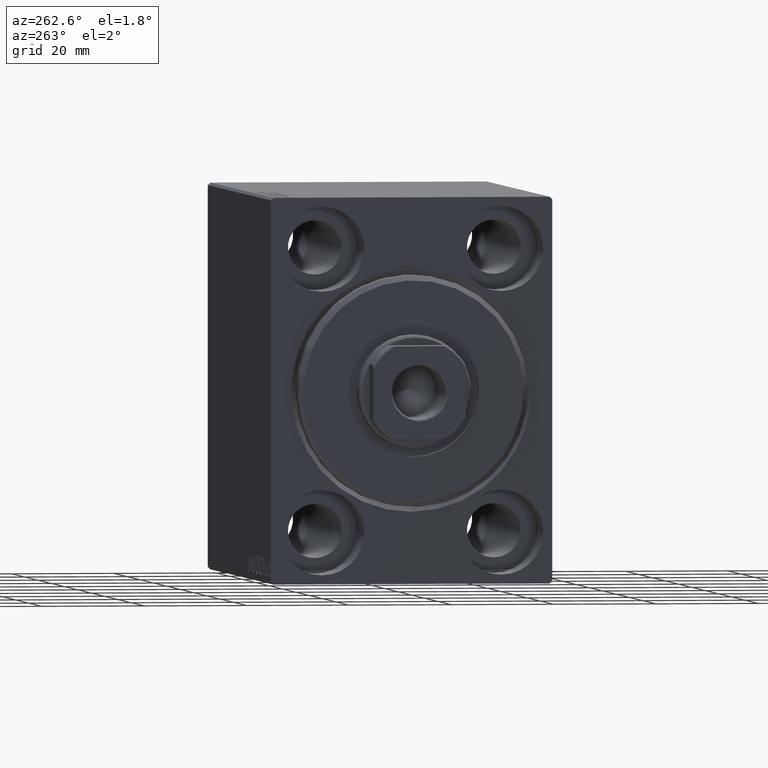
[diagram: clean part render]
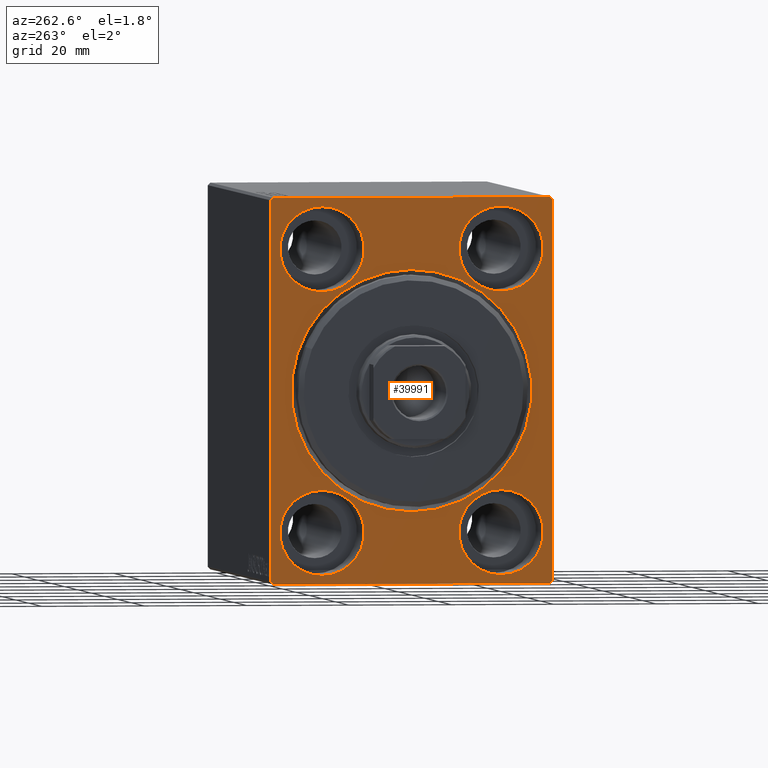
[diagram: same view with one face highlighted and labeled with its STEP entity id]
A machine part, auxiliary view. The second image highlights one B-rep face of the part: STEP entity #39991.
In plain terms, the highlighted planar face has unit normal (1, 0, 0).
Its self-contained STEP definition (entity closure, byte-faithful):
#241 = VECTOR ( 'NONE', #9380, 1000.000000000000000 ) ;
#531 = EDGE_CURVE ( 'NONE', #13108, #6761, #9244, .T. ) ;
#539 = CIRCLE ( 'NONE', #20919, 8.249999999999992895 ) ;
#1082 = VECTOR ( 'NONE', #38504, 1000.000000000000114 ) ;
#1170 = EDGE_CURVE ( 'NONE', #34095, #2520, #29628, .T. ) ;
#1282 = CARTESIAN_POINT ( 'NONE',  ( 0.000000000000000000, -27.50000000000000355, 37.00000000000001421 ) ) ;
#1674 = DIRECTION ( 'NONE',  ( -1.000000000000000000, 0.000000000000000000, 0.000000000000000000 ) ) ;
#1754 = CARTESIAN_POINT ( 'NONE',  ( 0.000000000000000000, -17.50000000000000355, -19.25000000000000355 ) ) ;
#1774 = CARTESIAN_POINT ( 'NONE',  ( 0.000000000000000000, -26.99999999999998934, -37.50000000000000000 ) ) ;
#1848 = DIRECTION ( 'NONE',  ( -1.000000000000000000, 0.000000000000000000, 0.000000000000000000 ) ) ;
#2207 = CARTESIAN_POINT ( 'NONE',  ( 0.000000000000000000, 27.50000000000000355, -37.50000000000000000 ) ) ;
#2520 = VERTEX_POINT ( 'NONE', #34844 ) ;
#2766 = LINE ( 'NONE', #39355, #241 ) ;
#2798 = DIRECTION ( 'NONE',  ( -0.000000000000000000, -0.7071067811865474617, 0.7071067811865474617 ) ) ;
#3040 = CARTESIAN_POINT ( 'NONE',  ( 0.000000000000000000, -17.50000000000000355, -35.75000000000000711 ) ) ;
#3401 = EDGE_CURVE ( 'NONE', #20647, #38796, #41661, .T. ) ;
#3490 = CARTESIAN_POINT ( 'NONE',  ( 0.000000000000000000, -27.50000000000000355, 37.00000000000001421 ) ) ;
#3710 = CARTESIAN_POINT ( 'NONE',  ( 0.000000000000000000, 17.50000000000000355, 27.49999999999999645 ) ) ;
#3990 = AXIS2_PLACEMENT_3D ( 'NONE', #13826, #1848, #18806 ) ;
#4154 = ORIENTED_EDGE ( 'NONE', *, *, #531, .F. ) ;
#4217 = ORIENTED_EDGE ( 'NONE', *, *, #5397, .F. ) ;
#4219 = EDGE_CURVE ( 'NONE', #38136, #40950, #33347, .T. ) ;
#4307 = DIRECTION ( 'NONE',  ( 1.000000000000000000, 0.000000000000000000, 0.000000000000000000 ) ) ;
#4532 = DIRECTION ( 'NONE',  ( 0.000000000000000000, 0.000000000000000000, 1.000000000000000000 ) ) ;
#4549 = ORIENTED_EDGE ( 'NONE', *, *, #40321, .T. ) ;
#4986 = VERTEX_POINT ( 'NONE', #33366 ) ;
#5397 = EDGE_CURVE ( 'NONE', #4986, #16584, #27107, .T. ) ;
#5575 = DIRECTION ( 'NONE',  ( 1.000000000000000000, 0.000000000000000000, 0.000000000000000000 ) ) ;
#5899 = EDGE_CURVE ( 'NONE', #4986, #35430, #21040, .T. ) ;
#6061 = EDGE_LOOP ( 'NONE', ( #13086, #21326 ) ) ;
#6761 = VERTEX_POINT ( 'NONE', #3040 ) ;
#7625 = FACE_BOUND ( 'NONE', #17762, .T. ) ;
#7838 = FACE_BOUND ( 'NONE', #13970, .T. ) ;
#9244 = CIRCLE ( 'NONE', #39502, 8.250000000000000000 ) ;
#9380 = DIRECTION ( 'NONE',  ( 0.000000000000000000, 0.000000000000000000, -1.000000000000000000 ) ) ;
#9678 = CIRCLE ( 'NONE', #34274, 8.250000000000000000 ) ;
#9929 = CARTESIAN_POINT ( 'NONE',  ( 0.000000000000000000, 17.50000000000000355, 27.49999999999999645 ) ) ;
#9960 = VERTEX_POINT ( 'NONE', #25706 ) ;
#10304 = EDGE_CURVE ( 'NONE', #2520, #34095, #15102, .T. ) ;
#11026 = CARTESIAN_POINT ( 'NONE',  ( 0.000000000000000000, 17.49999999999999645, -27.50000000000000355 ) ) ;
#11139 = DIRECTION ( 'NONE',  ( 0.000000000000000000, 0.000000000000000000, 1.000000000000000000 ) ) ;
#11586 = FACE_BOUND ( 'NONE', #6061, .T. ) ;
#11781 = ORIENTED_EDGE ( 'NONE', *, *, #35797, .F. ) ;
#12359 = CARTESIAN_POINT ( 'NONE',  ( 0.000000000000000000, -17.49999999999999645, 35.74999999999999289 ) ) ;
#12391 = LINE ( 'NONE', #23100, #13753 ) ;
#12486 = ORIENTED_EDGE ( 'NONE', *, *, #28899, .F. ) ;
#13086 = ORIENTED_EDGE ( 'NONE', *, *, #10304, .F. ) ;
#13108 = VERTEX_POINT ( 'NONE', #1754 ) ;
#13329 = EDGE_CURVE ( 'NONE', #33417, #16584, #38060, .T. ) ;
#13753 = VECTOR ( 'NONE', #36563, 1000.000000000000114 ) ;
#13826 = CARTESIAN_POINT ( 'NONE',  ( 0.000000000000000000, -17.49999999999999645, 27.49999999999999645 ) ) ;
#13882 = EDGE_CURVE ( 'NONE', #37197, #40950, #12391, .T. ) ;
#13970 = EDGE_LOOP ( 'NONE', ( #4154, #37489 ) ) ;
#14108 = DIRECTION ( 'NONE',  ( 0.000000000000000000, 0.000000000000000000, 1.000000000000000000 ) ) ;
#14117 = EDGE_CURVE ( 'NONE', #38136, #16031, #23255, .T. ) ;
#14679 = DIRECTION ( 'NONE',  ( -0.000000000000000000, 0.7071067811865622277, -0.7071067811865328068 ) ) ;
#14817 = DIRECTION ( 'NONE',  ( 0.000000000000000000, 0.000000000000000000, 1.000000000000000000 ) ) ;
#14984 = VECTOR ( 'NONE', #36626, 1000.000000000000000 ) ;
#15102 = CIRCLE ( 'NONE', #21401, 8.250000000000000000 ) ;
#16031 = VERTEX_POINT ( 'NONE', #42183 ) ;
#16281 = AXIS2_PLACEMENT_3D ( 'NONE', #11026, #27513, #14108 ) ;
#16584 = VERTEX_POINT ( 'NONE', #31277 ) ;
#16827 = DIRECTION ( 'NONE',  ( 0.000000000000000000, 1.000000000000000000, 0.000000000000000000 ) ) ;
#16962 = DIRECTION ( 'NONE',  ( 0.000000000000000000, 0.000000000000000000, 1.000000000000000000 ) ) ;
#17186 = CARTESIAN_POINT ( 'NONE',  ( 0.000000000000000000, 0.000000000000000000, 0.000000000000000000 ) ) ;
#17440 = ORIENTED_EDGE ( 'NONE', *, *, #14117, .T. ) ;
#17740 = FACE_BOUND ( 'NONE', #42452, .T. ) ;
#17762 = EDGE_LOOP ( 'NONE', ( #11781, #21178 ) ) ;
#18190 = FACE_OUTER_BOUND ( 'NONE', #33766, .T. ) ;
#18400 = CARTESIAN_POINT ( 'NONE',  ( 0.000000000000000000, 0.000000000000000000, 0.000000000000000000 ) ) ;
#18806 = DIRECTION ( 'NONE',  ( 0.000000000000000000, 0.000000000000000000, 1.000000000000000000 ) ) ;
#19130 = AXIS2_PLACEMENT_3D ( 'NONE', #17186, #43281, #36438 ) ;
#19449 = CARTESIAN_POINT ( 'NONE',  ( 0.000000000000000000, -17.50000000000000355, -27.50000000000000355 ) ) ;
#19538 = CARTESIAN_POINT ( 'NONE',  ( 0.000000000000000000, -26.99999999999998934, -37.50000000000000000 ) ) ;
#19897 = CARTESIAN_POINT ( 'NONE',  ( 0.000000000000000000, -27.50000000000000355, -37.50000000000000000 ) ) ;
#20229 = DIRECTION ( 'NONE',  ( -1.000000000000000000, 0.000000000000000000, 0.000000000000000000 ) ) ;
#20647 = VERTEX_POINT ( 'NONE', #21561 ) ;
#20919 = AXIS2_PLACEMENT_3D ( 'NONE', #9929, #36589, #16962 ) ;
#21040 = LINE ( 'NONE', #34068, #43150 ) ;
#21178 = ORIENTED_EDGE ( 'NONE', *, *, #24321, .F. ) ;
#21299 = EDGE_CURVE ( 'NONE', #37197, #35430, #35922, .T. ) ;
#21326 = ORIENTED_EDGE ( 'NONE', *, *, #1170, .F. ) ;
#21401 = AXIS2_PLACEMENT_3D ( 'NONE', #21915, #1674, #4532 ) ;
#21561 = CARTESIAN_POINT ( 'NONE',  ( 0.000000000000000000, 2.877919977996280715E-15, -23.50000000000000355 ) ) ;
#21801 = ORIENTED_EDGE ( 'NONE', *, *, #31775, .F. ) ;
#21915 = CARTESIAN_POINT ( 'NONE',  ( 0.000000000000000000, 17.49999999999999645, -27.50000000000000355 ) ) ;
#22921 = AXIS2_PLACEMENT_3D ( 'NONE', #18400, #4307, #34938 ) ;
#23100 = CARTESIAN_POINT ( 'NONE',  ( 0.000000000000000000, 27.50000000000000355, -37.00000000000000000 ) ) ;
#23115 = DIRECTION ( 'NONE',  ( 0.000000000000000000, -9.251858538542970348E-17, 1.000000000000000000 ) ) ;
#23211 = EDGE_CURVE ( 'NONE', #6761, #13108, #9678, .T. ) ;
#23255 = LINE ( 'NONE', #19538, #31363 ) ;
#24321 = EDGE_CURVE ( 'NONE', #9960, #29304, #539, .T. ) ;
#25007 = ORIENTED_EDGE ( 'NONE', *, *, #42826, .F. ) ;
#25209 = PLANE ( 'NONE',  #22921 ) ;
#25706 = CARTESIAN_POINT ( 'NONE',  ( 0.000000000000000000, 17.50000000000000355, 19.25000000000000000 ) ) ;
#25738 = AXIS2_PLACEMENT_3D ( 'NONE', #36197, #5575, #43042 ) ;
#25973 = ORIENTED_EDGE ( 'NONE', *, *, #5899, .T. ) ;
#26079 = CARTESIAN_POINT ( 'NONE',  ( 0.000000000000000000, 0.000000000000000000, 23.50000000000000355 ) ) ;
#26874 = VECTOR ( 'NONE', #16827, 1000.000000000000000 ) ;
#27107 = LINE ( 'NONE', #40595, #14984 ) ;
#27513 = DIRECTION ( 'NONE',  ( -1.000000000000000000, 0.000000000000000000, 0.000000000000000000 ) ) ;
#27732 = CARTESIAN_POINT ( 'NONE',  ( 0.000000000000000000, 27.49999999999999645, 37.00000000000004263 ) ) ;
#27905 = CIRCLE ( 'NONE', #3990, 8.249999999999992895 ) ;
#28440 = CIRCLE ( 'NONE', #40435, 8.249999999999992895 ) ;
#28785 = CIRCLE ( 'NONE', #36561, 8.249999999999992895 ) ;
#28787 = VERTEX_POINT ( 'NONE', #43573 ) ;
#28879 = CARTESIAN_POINT ( 'NONE',  ( 0.000000000000000000, -17.50000000000000355, -27.50000000000000355 ) ) ;
#28899 = EDGE_CURVE ( 'NONE', #28787, #40665, #28785, .T. ) ;
#29304 = VERTEX_POINT ( 'NONE', #35303 ) ;
#29339 = CARTESIAN_POINT ( 'NONE',  ( 0.000000000000000000, 27.50000000000000355, -37.00000000000000000 ) ) ;
#29571 = DIRECTION ( 'NONE',  ( -1.000000000000000000, 0.000000000000000000, 0.000000000000000000 ) ) ;
#29628 = CIRCLE ( 'NONE', #16281, 8.250000000000000000 ) ;
#30576 = CARTESIAN_POINT ( 'NONE',  ( 0.000000000000000000, 17.49999999999999645, -35.75000000000000711 ) ) ;
#31277 = CARTESIAN_POINT ( 'NONE',  ( 0.000000000000000000, -27.00000000000003197, 37.50000000000000000 ) ) ;
#31363 = VECTOR ( 'NONE', #2798, 1000.000000000000114 ) ;
#31775 = EDGE_CURVE ( 'NONE', #33417, #16031, #2766, .T. ) ;
#32568 = CARTESIAN_POINT ( 'NONE',  ( 0.000000000000000000, 27.00000000000000355, -37.50000000000000000 ) ) ;
#33347 = LINE ( 'NONE', #19897, #26874 ) ;
#33366 = CARTESIAN_POINT ( 'NONE',  ( 0.000000000000000000, 27.00000000000001066, 37.50000000000000711 ) ) ;
#33417 = VERTEX_POINT ( 'NONE', #3490 ) ;
#33687 = DIRECTION ( 'NONE',  ( 0.000000000000000000, 0.000000000000000000, 1.000000000000000000 ) ) ;
#33766 = EDGE_LOOP ( 'NONE', ( #21801, #42620, #4217, #25973, #43424, #39010, #39892, #17440 ) ) ;
#34068 = CARTESIAN_POINT ( 'NONE',  ( 0.000000000000000000, 27.00000000000001066, 37.50000000000000711 ) ) ;
#34095 = VERTEX_POINT ( 'NONE', #30576 ) ;
#34274 = AXIS2_PLACEMENT_3D ( 'NONE', #19449, #29571, #38848 ) ;
#34484 = DIRECTION ( 'NONE',  ( -1.000000000000000000, 0.000000000000000000, 0.000000000000000000 ) ) ;
#34844 = CARTESIAN_POINT ( 'NONE',  ( 0.000000000000000000, 17.49999999999999645, -19.25000000000000355 ) ) ;
#34938 = DIRECTION ( 'NONE',  ( 0.000000000000000000, 0.000000000000000000, -1.000000000000000000 ) ) ;
#35293 = DIRECTION ( 'NONE',  ( -1.000000000000000000, 0.000000000000000000, 0.000000000000000000 ) ) ;
#35303 = CARTESIAN_POINT ( 'NONE',  ( 0.000000000000000000, 17.50000000000000355, 35.74999999999999289 ) ) ;
#35430 = VERTEX_POINT ( 'NONE', #27732 ) ;
#35797 = EDGE_CURVE ( 'NONE', #29304, #9960, #28440, .T. ) ;
#35922 = LINE ( 'NONE', #2207, #39175 ) ;
#36197 = CARTESIAN_POINT ( 'NONE',  ( 0.000000000000000000, 0.000000000000000000, 0.000000000000000000 ) ) ;
#36438 = DIRECTION ( 'NONE',  ( 0.000000000000000000, 0.000000000000000000, -1.000000000000000000 ) ) ;
#36561 = AXIS2_PLACEMENT_3D ( 'NONE', #37795, #34484, #11139 ) ;
#36563 = DIRECTION ( 'NONE',  ( 0.000000000000000000, -0.7071067811865474617, -0.7071067811865474617 ) ) ;
#36589 = DIRECTION ( 'NONE',  ( -1.000000000000000000, 0.000000000000000000, 0.000000000000000000 ) ) ;
#36626 = DIRECTION ( 'NONE',  ( 0.000000000000000000, -1.000000000000000000, -1.261617073437677999E-16 ) ) ;
#37197 = VERTEX_POINT ( 'NONE', #29339 ) ;
#37489 = ORIENTED_EDGE ( 'NONE', *, *, #23211, .F. ) ;
#37795 = CARTESIAN_POINT ( 'NONE',  ( 0.000000000000000000, -17.49999999999999645, 27.49999999999999645 ) ) ;
#38028 = FACE_BOUND ( 'NONE', #39432, .T. ) ;
#38060 = LINE ( 'NONE', #1282, #1082 ) ;
#38136 = VERTEX_POINT ( 'NONE', #1774 ) ;
#38504 = DIRECTION ( 'NONE',  ( -0.000000000000000000, 0.7071067811865376918, 0.7071067811865573427 ) ) ;
#38796 = VERTEX_POINT ( 'NONE', #26079 ) ;
#38848 = DIRECTION ( 'NONE',  ( 0.000000000000000000, 0.000000000000000000, 1.000000000000000000 ) ) ;
#39010 = ORIENTED_EDGE ( 'NONE', *, *, #13882, .T. ) ;
#39175 = VECTOR ( 'NONE', #23115, 1000.000000000000000 ) ;
#39355 = CARTESIAN_POINT ( 'NONE',  ( 0.000000000000000000, -27.50000000000000355, 37.50000000000000000 ) ) ;
#39432 = EDGE_LOOP ( 'NONE', ( #4549, #42225 ) ) ;
#39502 = AXIS2_PLACEMENT_3D ( 'NONE', #28879, #35293, #14817 ) ;
#39892 = ORIENTED_EDGE ( 'NONE', *, *, #4219, .F. ) ;
#39991 = ADVANCED_FACE ( 'NONE', ( #38028, #11586, #17740, #7625, #7838, #18190 ), #25209, .F. ) ;
#40321 = EDGE_CURVE ( 'NONE', #38796, #20647, #42643, .T. ) ;
#40435 = AXIS2_PLACEMENT_3D ( 'NONE', #3710, #20229, #33687 ) ;
#40595 = CARTESIAN_POINT ( 'NONE',  ( 0.000000000000000000, 27.49999999999999645, 37.50000000000000711 ) ) ;
#40665 = VERTEX_POINT ( 'NONE', #12359 ) ;
#40950 = VERTEX_POINT ( 'NONE', #32568 ) ;
#41661 = CIRCLE ( 'NONE', #19130, 23.50000000000000355 ) ;
#42183 = CARTESIAN_POINT ( 'NONE',  ( 0.000000000000000000, -27.50000000000000355, -36.99999999999998579 ) ) ;
#42225 = ORIENTED_EDGE ( 'NONE', *, *, #3401, .T. ) ;
#42452 = EDGE_LOOP ( 'NONE', ( #25007, #12486 ) ) ;
#42620 = ORIENTED_EDGE ( 'NONE', *, *, #13329, .T. ) ;
#42643 = CIRCLE ( 'NONE', #25738, 23.50000000000000355 ) ;
#42826 = EDGE_CURVE ( 'NONE', #40665, #28787, #27905, .T. ) ;
#43042 = DIRECTION ( 'NONE',  ( 0.000000000000000000, 0.000000000000000000, -1.000000000000000000 ) ) ;
#43150 = VECTOR ( 'NONE', #14679, 1000.000000000000000 ) ;
#43281 = DIRECTION ( 'NONE',  ( 1.000000000000000000, 0.000000000000000000, 0.000000000000000000 ) ) ;
#43424 = ORIENTED_EDGE ( 'NONE', *, *, #21299, .F. ) ;
#43573 = CARTESIAN_POINT ( 'NONE',  ( 0.000000000000000000, -17.49999999999999645, 19.25000000000000000 ) ) ;